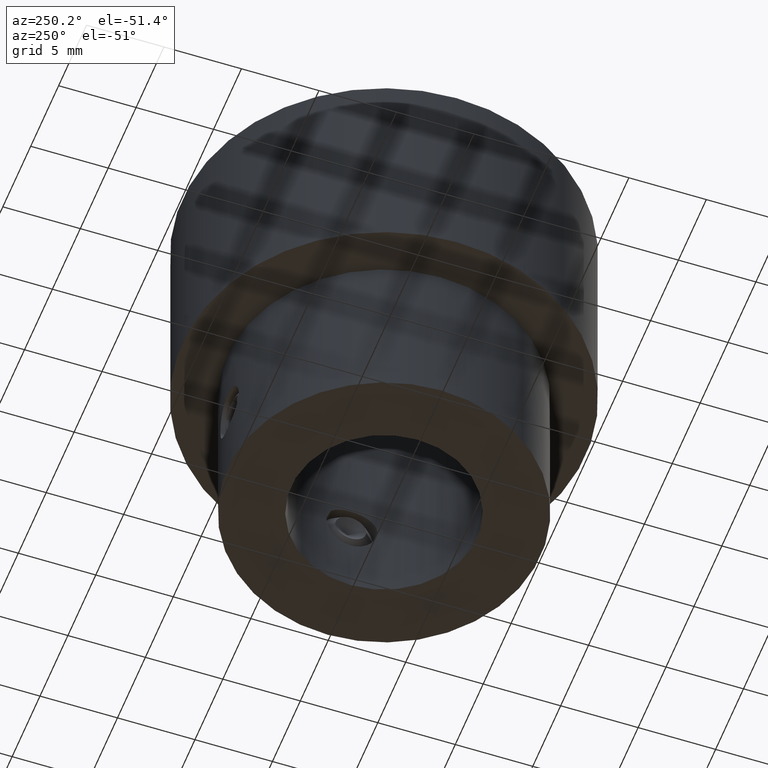
[diagram: clean part render]
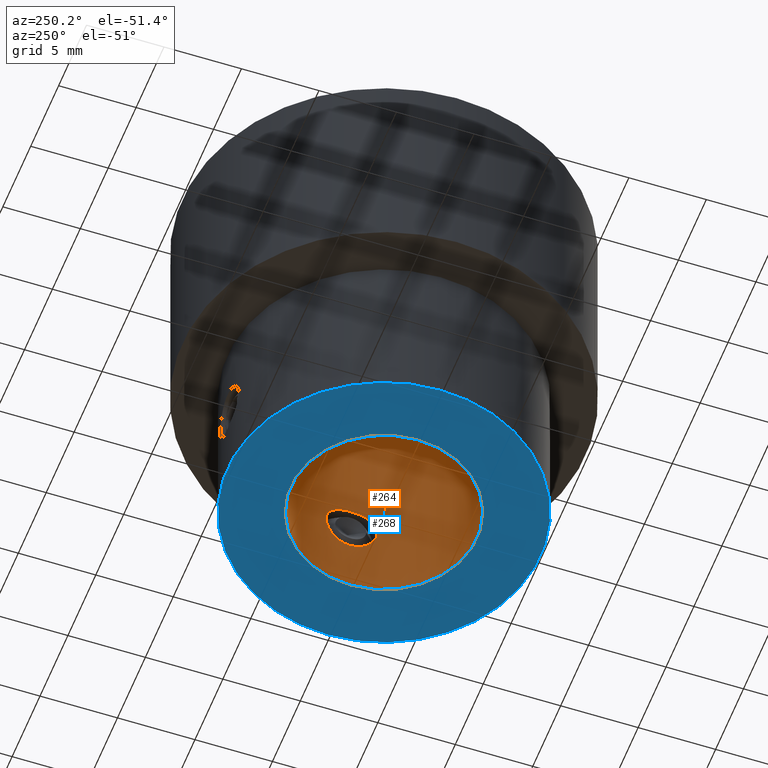
[diagram: same view with the hole feature highlighted: cylindrical wall and planar end face, labeled with their STEP entity ids]
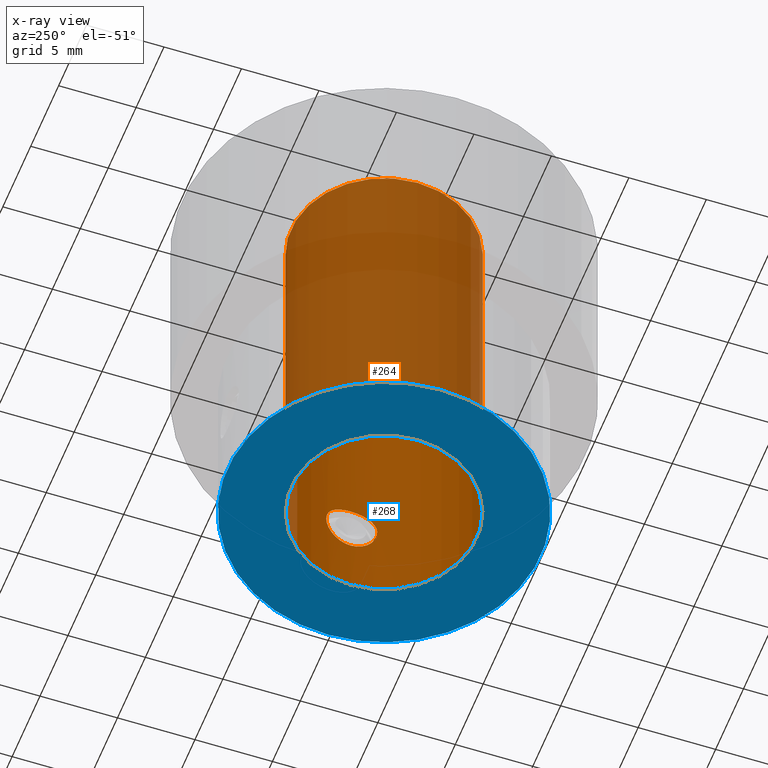
[diagram: x-ray of the same camera — body ghosted, the hole faces saturated]
A machine part, auxiliary view. The highlighted faces form one hole feature of diameter 12 mm: the cylindrical wall (entity #264, orange) and its adjacent planar end face (entity #268, blue) — they share a circular edge in the B-rep.
The next image is the same camera in x-ray (body ghosted, the hole faces saturated) — the bore reads through the body.
Wall:
#264 = ADVANCED_FACE( '', ( #309, #310, #311, #312 ), #313, .F. );
#309 = FACE_BOUND( '', #401, .T. );
#310 = FACE_OUTER_BOUND( '', #402, .T. );
#311 = FACE_OUTER_BOUND( '', #403, .T. );
#312 = FACE_BOUND( '', #404, .T. );
#313 = CYLINDRICAL_SURFACE( '', #405, 6.00000000000000 );
#401 = EDGE_LOOP( '', ( #495 ) );
#402 = EDGE_LOOP( '', ( #496 ) );
#403 = EDGE_LOOP( '', ( #497 ) );
#404 = EDGE_LOOP( '', ( #498 ) );
#405 = AXIS2_PLACEMENT_3D( '', #499, #500, #501 );
#495 = ORIENTED_EDGE( '', *, *, #708, .T. );
#496 = ORIENTED_EDGE( '', *, *, #709, .F. );
#497 = ORIENTED_EDGE( '', *, *, #710, .T. );
#498 = ORIENTED_EDGE( '', *, *, #711, .T. );
#499 = CARTESIAN_POINT( '', ( 0.000000000000000, 0.000000000000000, -25.0000000000000 ) );
#500 = DIRECTION( '', ( -0.000000000000000, 0.000000000000000, -1.00000000000000 ) );
#501 = DIRECTION( '', ( 1.00000000000000, 0.000000000000000, 0.000000000000000 ) );
#708 = EDGE_CURVE( '', #770, #770, #771, .T. );
#709 = EDGE_CURVE( '', #772, #772, #773, .T. );
#710 = EDGE_CURVE( '', #774, #774, #775, .T. );
#711 = EDGE_CURVE( '', #776, #776, #777, .T. );
#770 = VERTEX_POINT( '', #968 );
#771 = B_SPLINE_CURVE_WITH_KNOTS( '', 3, ( #969, #970, #971, #972, #973, #974, #975, #976, #977, #978, #979, #980, #981, #982, #983, #984, #985, #986, #987, #988, #989, #990, #991, #992, #993, #994, #995, #996, #997, #998, #999, #1000, #1001, #1002, #1003, #1004, #1005, #1006, #1007, #1008, #1009, #1010, #1011, #1012, #1013, #1014, #1015, #1016, #1017, #1018, #1019, #1020, #1021, #1022 ), .UNSPECIFIED., .T., .F., ( 2, 2, 2, 2, 2, 2, 2, 2, 2, 2, 2, 2, 2, 2, 2, 2, 2, 2, 2, 2, 2, 2, 2, 2, 2, 2, 2, 2, 2 ), ( -0.000323939765471952, 0.000000000000000, 0.000323939765471942, 0.000647879530943885, 0.000971819296415827, 0.00129575906188777, 0.00194363859283165, 0.00259151812377554, 0.00291545788924748, 0.00323939765471942, 0.00388727718566332, 0.00421121695113527, 0.00453515671660721, 0.00485909648207916, 0.00518303624755111, 0.00583091577849500, 0.00615485554396695, 0.00647879530943889, 0.00680273507491084, 0.00712667484038279, 0.00745061460585473, 0.00777455437132668, 0.00809849413679863, 0.00842243390227058, 0.00907031343321448, 0.00971819296415838, 0.0100421327296303, 0.0103660724951023, 0.0106900122605742 ), .UNSPECIFIED. );
#772 = VERTEX_POINT( '', #1023 );
#773 = CIRCLE( '', #1024, 6.00000000000000 );
#774 = VERTEX_POINT( '', #1025 );
#775 = CIRCLE( '', #1026, 6.00000000000000 );
#776 = VERTEX_POINT( '', #1027 );
#777 = B_SPLINE_CURVE_WITH_KNOTS( '', 3, ( #1028, #1029, #1030, #1031, #1032, #1033, #1034, #1035, #1036, #1037, #1038, #1039, #1040, #1041, #1042, #1043, #1044, #1045, #1046, #1047, #1048, #1049, #1050, #1051, #1052, #1053, #1054, #1055, #1056, #1057, #1058, #1059, #1060, #1061, #1062, #1063, #1064, #1065, #1066, #1067, #1068, #1069, #1070, #1071, #1072, #1073, #1074, #1075, #1076, #1077, #1078, #1079, #1080, #1081 ), .UNSPECIFIED., .T., .F., ( 2, 2, 2, 2, 2, 2, 2, 2, 2, 2, 2, 2, 2, 2, 2, 2, 2, 2, 2, 2, 2, 2, 2, 2, 2, 2, 2, 2, 2 ), ( -0.000323939765471951, 0.000000000000000, 0.000323939765471942, 0.000647879530943885, 0.000971819296415827, 0.00129575906188777, 0.00194363859283165, 0.00259151812377554, 0.00291545788924748, 0.00323939765471942, 0.00388727718566332, 0.00421121695113526, 0.00453515671660721, 0.00485909648207916, 0.00518303624755110, 0.00583091577849500, 0.00615485554396695, 0.00647879530943889, 0.00680273507491084, 0.00712667484038279, 0.00745061460585473, 0.00777455437132668, 0.00809849413679863, 0.00842243390227058, 0.00907031343321448, 0.00971819296415838, 0.0100421327296303, 0.0103660724951023, 0.0106900122605742 ), .UNSPECIFIED. );
#968 = CARTESIAN_POINT( '', ( 6.00000000000000, 0.000000000000000, -21.1500000000000 ) );
#969 = CARTESIAN_POINT( '', ( 6.00000000000000, -0.109573475891822, -21.1500000000000 ) );
#970 = CARTESIAN_POINT( '', ( 6.00000000000000, 0.109573475891819, -21.1500000000000 ) );
#971 = CARTESIAN_POINT( '', ( 5.99700297822039, 0.217213428494543, -21.1391943991844 ) );
#972 = CARTESIAN_POINT( '', ( 5.98559468047398, 0.428815479412887, -21.0969524840933 ) );
#973 = CARTESIAN_POINT( '', ( 5.97704097585373, 0.533902399752621, -21.0649694792153 ) );
#974 = CARTESIAN_POINT( '', ( 5.95584342596189, 0.733484618054554, -20.9819519420056 ) );
#975 = CARTESIAN_POINT( '', ( 5.94327525367664, 0.828056611830158, -20.9312278988885 ) );
#976 = CARTESIAN_POINT( '', ( 5.91558229028968, 1.00701770598730, -20.8114901413204 ) );
#977 = CARTESIAN_POINT( '', ( 5.90042252608942, 1.09131436953481, -20.7421730701799 ) );
#978 = CARTESIAN_POINT( '', ( 5.85540215540988, 1.31836176998862, -20.5150202959376 ) );
#979 = CARTESIAN_POINT( '', ( 5.82500009800697, 1.44105579873491, -20.3318499345471 ) );
#980 = CARTESIAN_POINT( '', ( 5.78170573370566, 1.60597221821667, -19.9352807863780 ) );
#981 = CARTESIAN_POINT( '', ( 5.76870574473718, 1.64985879762447, -19.7174599850568 ) );
#982 = CARTESIAN_POINT( '', ( 5.76864531297230, 1.65007007684170, -19.3928810669791 ) );
#983 = CARTESIAN_POINT( '', ( 5.77177681843597, 1.63923020505683, -19.2829437419349 ) );
#984 = CARTESIAN_POINT( '', ( 5.78363409732728, 1.59689070860809, -19.0708972744236 ) );
#985 = CARTESIAN_POINT( '', ( 5.79230806578152, 1.56557208108265, -18.9677821966537 ) );
#986 = CARTESIAN_POINT( '', ( 5.82507084024762, 1.44081379297512, -18.6671479488954 ) );
#987 = CARTESIAN_POINT( '', ( 5.85521444765090, 1.31933834669987, -18.4858991081325 ) );
#988 = CARTESIAN_POINT( '', ( 5.90058193199823, 1.09049545576276, -18.2570365114169 ) );
#989 = CARTESIAN_POINT( '', ( 5.91544775006866, 1.00777670580793, -18.1891222360454 ) );
#990 = CARTESIAN_POINT( '', ( 5.94306809523530, 0.829504423109222, -18.0696375239675 ) );
#991 = CARTESIAN_POINT( '', ( 5.95591470696913, 0.732865789745175, -18.0177654183131 ) );
#992 = CARTESIAN_POINT( '', ( 5.97703976571794, 0.533861312979721, -17.9350387482653 ) );
#993 = CARTESIAN_POINT( '', ( 5.98544988379532, 0.430974265958242, -17.9035875642896 ) );
#994 = CARTESIAN_POINT( '', ( 5.99697660631211, 0.218221705357195, -17.8608994020744 ) );
#995 = CARTESIAN_POINT( '', ( 5.99998728422961, 0.108702393680486, -17.8500462391689 ) );
#996 = CARTESIAN_POINT( '', ( 6.00002530758481, -0.215292344446525, -17.8499079724111 ) );
#997 = CARTESIAN_POINT( '', ( 5.98766598791112, -0.433414116945999, -17.8934488268260 ) );
#998 = CARTESIAN_POINT( '', ( 5.95605523238036, -0.731713067891662, -18.0172037889597 ) );
#999 = CARTESIAN_POINT( '', ( 5.94324142084535, -0.828293445142347, -18.0689133466604 ) );
#1000 = CARTESIAN_POINT( '', ( 5.91555963669346, -1.00714586949496, -18.1886128572417 ) );
#1001 = CARTESIAN_POINT( '', ( 5.90069222742840, -1.08988816912181, -18.2565271146808 ) );
#1002 = CARTESIAN_POINT( '', ( 5.87052286916909, -1.24216996686781, -18.4086270980423 ) );
#1003 = CARTESIAN_POINT( '', ( 5.85526641142528, -1.31133656582106, -18.4928408685488 ) );
#1004 = CARTESIAN_POINT( '', ( 5.82728840622347, -1.43054471035263, -18.6708347953471 ) );
#1005 = CARTESIAN_POINT( '', ( 5.81439128582987, -1.48146042736154, -18.7654064223786 ) );
#1006 = CARTESIAN_POINT( '', ( 5.79242769886707, -1.56513653588756, -18.9664268127512 ) );
#1007 = CARTESIAN_POINT( '', ( 5.78371427273985, -1.59660056448243, -19.0699084358417 ) );
#1008 = CARTESIAN_POINT( '', ( 5.77184863324940, -1.63897757948583, -19.2812201791560 ) );
#1009 = CARTESIAN_POINT( '', ( 5.76867835601602, -1.64995455302644, -19.3905079713039 ) );
#1010 = CARTESIAN_POINT( '', ( 5.76865243962299, -1.65004516091289, -19.6081179834655 ) );
#1011 = CARTESIAN_POINT( '', ( 5.77171918853873, -1.63943211100153, -19.7155725070434 ) );
#1012 = CARTESIAN_POINT( '', ( 5.78353829860717, -1.59723660942055, -19.9278368449569 ) );
#1013 = CARTESIAN_POINT( '', ( 5.79240670617823, -1.56519857959077, -20.0331502678045 ) );
#1014 = CARTESIAN_POINT( '', ( 5.82493112205060, -1.44134159611536, -20.3315152492647 ) );
#1015 = CARTESIAN_POINT( '', ( 5.85532728337309, -1.31868049150572, -20.5145879660487 ) );
#1016 = CARTESIAN_POINT( '', ( 5.91533107496522, -1.01618605955889, -20.8174493811479 ) );
#1017 = CARTESIAN_POINT( '', ( 5.94520049479435, -0.833396076899701, -20.9402505388446 ) );
#1018 = CARTESIAN_POINT( '', ( 5.97691493640555, -0.535235769587515, -21.0644856438659 ) );
#1019 = CARTESIAN_POINT( '', ( 5.98552142401946, -0.429944981496119, -21.0966795431447 ) );
#1020 = CARTESIAN_POINT( '', ( 5.99700145220574, -0.217469507637247, -21.1391904294067 ) );
#1021 = CARTESIAN_POINT( '', ( 6.00000000000000, -0.109573475891822, -21.1500000000000 ) );
#1022 = CARTESIAN_POINT( '', ( 6.00000000000000, 0.109573475891819, -21.1500000000000 ) );
#1023 = CARTESIAN_POINT( '', ( 6.00000000000000, 0.000000000000000, -25.0000000000000 ) );
#1024 = AXIS2_PLACEMENT_3D( '', #1256, #1257, #1258 );
#1025 = CARTESIAN_POINT( '', ( 6.00000000000000, 0.000000000000000, 0.000000000000000 ) );
#1026 = AXIS2_PLACEMENT_3D( '', #1259, #1260, #1261 );
#1027 = CARTESIAN_POINT( '', ( 3.67394039744206E-016, 6.00000000000000, -21.1500000000000 ) );
#1028 = CARTESIAN_POINT( '', ( 0.109573475891822, 6.00000000000000, -21.1500000000000 ) );
#1029 = CARTESIAN_POINT( '', ( -0.109573475891818, 6.00000000000000, -21.1500000000000 ) );
#1030 = CARTESIAN_POINT( '', ( -0.217213428494543, 5.99700297822039, -21.1391943991844 ) );
#1031 = CARTESIAN_POINT( '', ( -0.428815479412887, 5.98559468047398, -21.0969524840933 ) );
#1032 = CARTESIAN_POINT( '', ( -0.533902399752621, 5.97704097585373, -21.0649694792153 ) );
#1033 = CARTESIAN_POINT( '', ( -0.733484618054554, 5.95584342596189, -20.9819519420056 ) );
#1034 = CARTESIAN_POINT( '', ( -0.828056611830158, 5.94327525367664, -20.9312278988885 ) );
#1035 = CARTESIAN_POINT( '', ( -1.00701770598730, 5.91558229028967, -20.8114901413204 ) );
#1036 = CARTESIAN_POINT( '', ( -1.09131436953481, 5.90042252608942, -20.7421730701799 ) );
#1037 = CARTESIAN_POINT( '', ( -1.31836176998862, 5.85540215540988, -20.5150202959376 ) );
#1038 = CARTESIAN_POINT( '', ( -1.44105579873491, 5.82500009800697, -20.3318499345471 ) );
#1039 = CARTESIAN_POINT( '', ( -1.60597221821667, 5.78170573370567, -19.9352807863780 ) );
#1040 = CARTESIAN_POINT( '', ( -1.64985879762446, 5.76870574473718, -19.7174599850568 ) );
#1041 = CARTESIAN_POINT( '', ( -1.65007007684170, 5.76864531297230, -19.3928810669790 ) );
#1042 = CARTESIAN_POINT( '', ( -1.63923020505683, 5.77177681843597, -19.2829437419349 ) );
#1043 = CARTESIAN_POINT( '', ( -1.59689070860809, 5.78363409732728, -19.0708972744237 ) );
#1044 = CARTESIAN_POINT( '', ( -1.56557208108265, 5.79230806578151, -18.9677821966537 ) );
#1045 = CARTESIAN_POINT( '', ( -1.44081379297512, 5.82507084024762, -18.6671479488954 ) );
#1046 = CARTESIAN_POINT( '', ( -1.31933834669987, 5.85521444765090, -18.4858991081325 ) );
#1047 = CARTESIAN_POINT( '', ( -1.09049545576276, 5.90058193199823, -18.2570365114169 ) );
#1048 = CARTESIAN_POINT( '', ( -1.00777670580793, 5.91544775006866, -18.1891222360454 ) );
#1049 = CARTESIAN_POINT( '', ( -0.829504423109221, 5.94306809523529, -18.0696375239674 ) );
#1050 = CARTESIAN_POINT( '', ( -0.732865789745175, 5.95591470696912, -18.0177654183131 ) );
#1051 = CARTESIAN_POINT( '', ( -0.533861312979721, 5.97703976571794, -17.9350387482653 ) );
#1052 = CARTESIAN_POINT( '', ( -0.430974265958242, 5.98544988379532, -17.9035875642896 ) );
#1053 = CARTESIAN_POINT( '', ( -0.218221705357195, 5.99697660631211, -17.8608994020744 ) );
#1054 = CARTESIAN_POINT( '', ( -0.108702393680487, 5.99998728422961, -17.8500462391689 ) );
#1055 = CARTESIAN_POINT( '', ( 0.215292344446526, 6.00002530758481, -17.8499079724111 ) );
#1056 = CARTESIAN_POINT( '', ( 0.433414116945999, 5.98766598791112, -17.8934488268260 ) );
#1057 = CARTESIAN_POINT( '', ( 0.731713067891662, 5.95605523238036, -18.0172037889597 ) );
#1058 = CARTESIAN_POINT( '', ( 0.828293445142347, 5.94324142084535, -18.0689133466604 ) );
#1059 = CARTESIAN_POINT( '', ( 1.00714586949496, 5.91555963669346, -18.1886128572417 ) );
#1060 = CARTESIAN_POINT( '', ( 1.08988816912181, 5.90069222742840, -18.2565271146808 ) );
#1061 = CARTESIAN_POINT( '', ( 1.24216996686781, 5.87052286916909, -18.4086270980423 ) );
#1062 = CARTESIAN_POINT( '', ( 1.31133656582106, 5.85526641142528, -18.4928408685488 ) );
#1063 = CARTESIAN_POINT( '', ( 1.43054471035263, 5.82728840622347, -18.6708347953471 ) );
#1064 = CARTESIAN_POINT( '', ( 1.48146042736154, 5.81439128582987, -18.7654064223786 ) );
#1065 = CARTESIAN_POINT( '', ( 1.56513653588756, 5.79242769886707, -18.9664268127512 ) );
#1066 = CARTESIAN_POINT( '', ( 1.59660056448243, 5.78371427273985, -19.0699084358416 ) );
#1067 = CARTESIAN_POINT( '', ( 1.63897757948583, 5.77184863324941, -19.2812201791560 ) );
#1068 = CARTESIAN_POINT( '', ( 1.64995455302645, 5.76867835601602, -19.3905079713039 ) );
#1069 = CARTESIAN_POINT( '', ( 1.65004516091289, 5.76865243962299, -19.6081179834655 ) );
#1070 = CARTESIAN_POINT( '', ( 1.63943211100153, 5.77171918853873, -19.7155725070434 ) );
#1071 = CARTESIAN_POINT( '', ( 1.59723660942055, 5.78353829860717, -19.9278368449569 ) );
#1072 = CARTESIAN_POINT( '', ( 1.56519857959077, 5.79240670617823, -20.0331502678046 ) );
#1073 = CARTESIAN_POINT( '', ( 1.44134159611536, 5.82493112205060, -20.3315152492647 ) );
#1074 = CARTESIAN_POINT( '', ( 1.31868049150573, 5.85532728337309, -20.5145879660487 ) );
#1075 = CARTESIAN_POINT( '', ( 1.01618605955889, 5.91533107496523, -20.8174493811479 ) );
#1076 = CARTESIAN_POINT( '', ( 0.833396076899702, 5.94520049479435, -20.9402505388446 ) );
#1077 = CARTESIAN_POINT( '', ( 0.535235769587516, 5.97691493640555, -21.0644856438659 ) );
#1078 = CARTESIAN_POINT( '', ( 0.429944981496120, 5.98552142401946, -21.0966795431447 ) );
#1079 = CARTESIAN_POINT( '', ( 0.217469507637248, 5.99700145220574, -21.1391904294067 ) );
#1080 = CARTESIAN_POINT( '', ( 0.109573475891822, 6.00000000000000, -21.1500000000000 ) );
#1081 = CARTESIAN_POINT( '', ( -0.109573475891818, 6.00000000000000, -21.1500000000000 ) );
#1256 = CARTESIAN_POINT( '', ( 0.000000000000000, 0.000000000000000, -25.0000000000000 ) );
#1257 = DIRECTION( '', ( 0.000000000000000, 0.000000000000000, 1.00000000000000 ) );
#1258 = DIRECTION( '', ( 1.00000000000000, 0.000000000000000, 0.000000000000000 ) );
#1259 = CARTESIAN_POINT( '', ( 0.000000000000000, 0.000000000000000, 0.000000000000000 ) );
#1260 = DIRECTION( '', ( 0.000000000000000, 0.000000000000000, 1.00000000000000 ) );
#1261 = DIRECTION( '', ( 1.00000000000000, 0.000000000000000, 0.000000000000000 ) );
End face:
#268 = ADVANCED_FACE( '', ( #323, #324 ), #325, .F. );
#323 = FACE_OUTER_BOUND( '', #415, .T. );
#324 = FACE_BOUND( '', #416, .T. );
#325 = PLANE( '', #417 );
#415 = EDGE_LOOP( '', ( #517 ) );
#416 = EDGE_LOOP( '', ( #518 ) );
#417 = AXIS2_PLACEMENT_3D( '', #519, #520, #521 );
#517 = ORIENTED_EDGE( '', *, *, #705, .F. );
#518 = ORIENTED_EDGE( '', *, *, #709, .T. );
#519 = CARTESIAN_POINT( '', ( 0.000000000000000, 0.000000000000000, -25.0000000000000 ) );
#520 = DIRECTION( '', ( 0.000000000000000, 0.000000000000000, 1.00000000000000 ) );
#521 = DIRECTION( '', ( 1.00000000000000, 0.000000000000000, 0.000000000000000 ) );
#705 = EDGE_CURVE( '', #764, #764, #765, .T. );
#709 = EDGE_CURVE( '', #772, #772, #773, .T. );
#764 = VERTEX_POINT( '', #913 );
#765 = CIRCLE( '', #914, 10.1000000000000 );
#772 = VERTEX_POINT( '', #1023 );
#773 = CIRCLE( '', #1024, 6.00000000000000 );
#913 = CARTESIAN_POINT( '', ( 10.1000000000000, 0.000000000000000, -25.0000000000000 ) );
#914 = AXIS2_PLACEMENT_3D( '', #1250, #1251, #1252 );
#1023 = CARTESIAN_POINT( '', ( 6.00000000000000, 0.000000000000000, -25.0000000000000 ) );
#1024 = AXIS2_PLACEMENT_3D( '', #1256, #1257, #1258 );
#1250 = CARTESIAN_POINT( '', ( 0.000000000000000, 0.000000000000000, -25.0000000000000 ) );
#1251 = DIRECTION( '', ( 0.000000000000000, 0.000000000000000, 1.00000000000000 ) );
#1252 = DIRECTION( '', ( 1.00000000000000, 0.000000000000000, -0.000000000000000 ) );
#1256 = CARTESIAN_POINT( '', ( 0.000000000000000, 0.000000000000000, -25.0000000000000 ) );
#1257 = DIRECTION( '', ( 0.000000000000000, 0.000000000000000, 1.00000000000000 ) );
#1258 = DIRECTION( '', ( 1.00000000000000, 0.000000000000000, 0.000000000000000 ) );